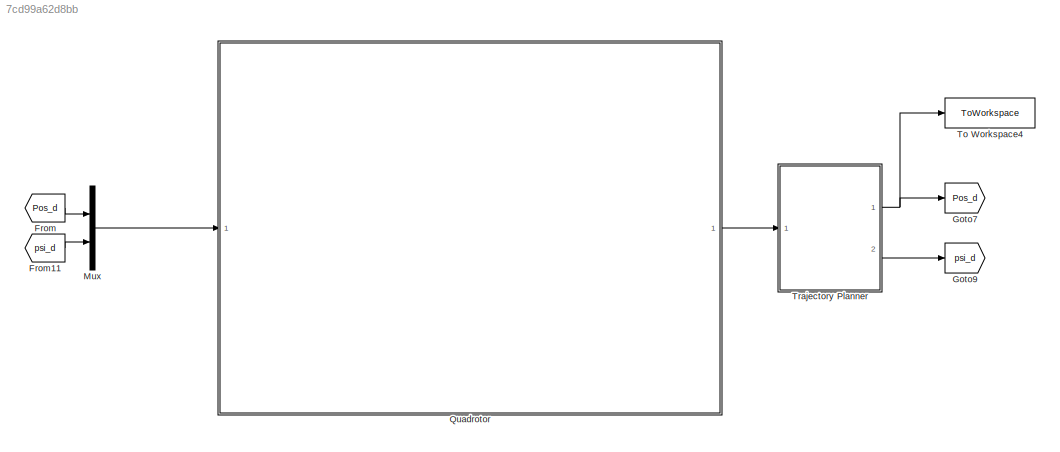
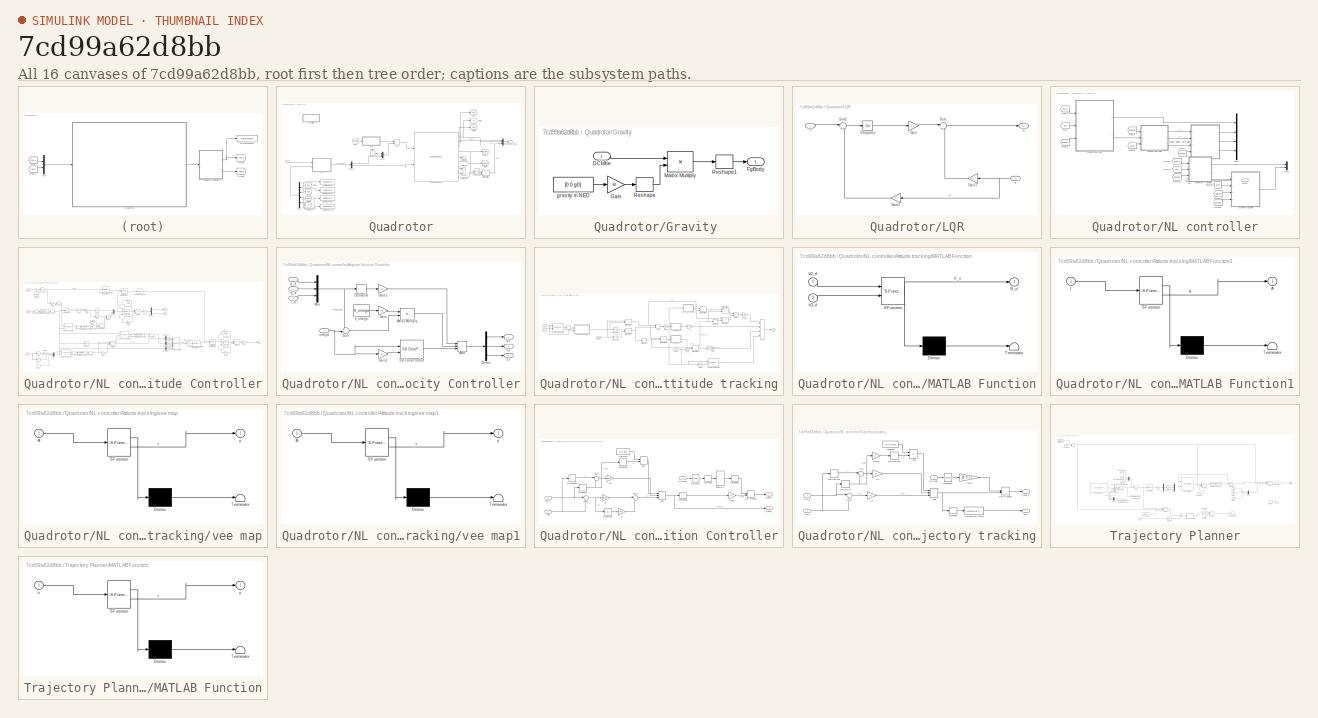
[diagram: thumbnail index - all 16 canvases of the model, root first then tree order]
MODEL slx_7cd99a62d8bb
KIND model
CONFIG AbsTol = auto
CONFIG EnableMultiTasking = off
CONFIG FixedStep = auto
CONFIG MaxStep = auto
CONFIG MinStep = auto
CONFIG RelTol = 1e-3
CONFIG SampleTimeConstraint = Unconstrained
CONFIG SolverName = VariableStepAuto
CONFIG StartTime = 0.0
CONFIG StopTime = 20
WORKSPACE source: external: MATLAB File  (data not in archive)
BLOCK [From] From
  GotoTag = Pos_d
BLOCK [From] From11
  GotoTag = psi_d
BLOCK [Goto] Goto7
  GotoTag = Pos_d
BLOCK [Goto] Goto9
  GotoTag = psi_d
BLOCK [Mux] Mux
  DisplayOption = bar
  Inputs = 2
  Ports = [2, 1]
BLOCK [SubSystem] Quadrotor
  Ports = [1, 1]
  RequestExecContextInheritance = off
BLOCK [Reference] Quadrotor/6DOF (Euler Angles)  REF=shared6dof/6DOF (Euler Angles)
  Ports = [2, 9]
  SourceBlock = shared6dof/6DOF (Euler Angles)
  SourceProductBaseCode = AE,PW,DR,MT,UV,VE
  SourceType = 6DOF EoM (Body Axis)
BLOCK [Sum] Quadrotor/Add
  IconShape = rectangular
  Inputs = +-
  Ports = [2, 1]
BLOCK [Demux] Quadrotor/Demux1
  Outputs = 2
  Ports = [1, 2]
BLOCK [From] Quadrotor/From
  GotoTag = DCMbe
BLOCK [From] Quadrotor/From1
  GotoTag = pos
  NameLocation = top
BLOCK [From] Quadrotor/From2
  GotoTag = euler
  NameLocation = top
BLOCK [From] Quadrotor/From8
  GotoTag = omega
  NameLocation = top
BLOCK [From] Quadrotor/From9
  GotoTag = Ve
  NameLocation = top
BLOCK [Goto] Quadrotor/Goto
  GotoTag = DCMbe
BLOCK [Goto] Quadrotor/Goto2
  GotoTag = Ve
BLOCK [Goto] Quadrotor/Goto4
  GotoTag = pos
BLOCK [Goto] Quadrotor/Goto5
  GotoTag = omega
BLOCK [Goto] Quadrotor/Goto6
  GotoTag = euler
BLOCK [SubSystem] Quadrotor/Gravity 
  Ports = [1, 1]
  RequestExecContextInheritance = off
BLOCK [Inport] Quadrotor/Gravity /DCMbe
BLOCK [Outport] Quadrotor/Gravity /FgBody
BLOCK [Gain] Quadrotor/Gravity /Gain
  Gain = M
BLOCK [Product] Quadrotor/Gravity /Matrix Multiply
  Multiplication = Matrix(*)
  Ports = [2, 1]
BLOCK [Reshape] Quadrotor/Gravity /Reshape
  OutputDimensionality = Column vector (2-D)
  Ports = [1, 1]
BLOCK [Reshape] Quadrotor/Gravity /Reshape1
  Ports = [1, 1]
BLOCK [Constant] Quadrotor/Gravity /gravity in NED
  Value = [0 0 g0]
BLOCK [SubSystem] Quadrotor/LQR
  Ports = [2, 1]
  RequestExecContextInheritance = off
BLOCK [Gain] Quadrotor/LQR/Gain
  Gain = Ki
  Multiplication = Matrix(K*u)
BLOCK [Gain] Quadrotor/LQR/Gain1
  Gain = K1
  Multiplication = Matrix(K*u)
  NameLocation = top
BLOCK [Gain] Quadrotor/LQR/Gain2
  Gain = C
  Multiplication = Matrix(K*u)
  NameLocation = top
BLOCK [Integrator] Quadrotor/LQR/Integrator
  Ports = [1, 1]
BLOCK [Sum] Quadrotor/LQR/Sum
  Inputs = |+-
  Ports = [2, 1]
BLOCK [Sum] Quadrotor/LQR/Sum1
  Inputs = |+-
  Ports = [2, 1]
BLOCK [Inport] Quadrotor/LQR/r
BLOCK [Outport] Quadrotor/LQR/u
BLOCK [Inport] Quadrotor/LQR/x
  NameLocation = top
  Port = 2
BLOCK [Product] Quadrotor/Matrix Multiply
  Multiplication = Matrix(*)
  Ports = [2, 1]
BLOCK [Mux] Quadrotor/Mux
  DisplayOption = bar
  Inputs = 3
  Ports = [3, 1]
BLOCK [Mux] Quadrotor/Mux1
  DisplayOption = bar
  Inputs = 3
  Ports = [3, 1]
BLOCK [Mux] Quadrotor/Mux2
  DisplayOption = bar
  NameLocation = top
  Ports = [4, 1]
BLOCK [SubSystem] Quadrotor/NL controller
  Commented = on
  Ports = [1, 1]
  RequestExecContextInheritance = off
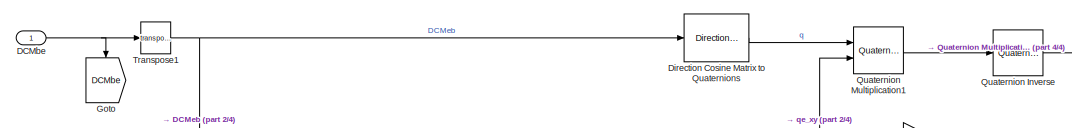
[diagram: Quadrotor/NL controller/Altitude Controller - part 1/4, top left region]
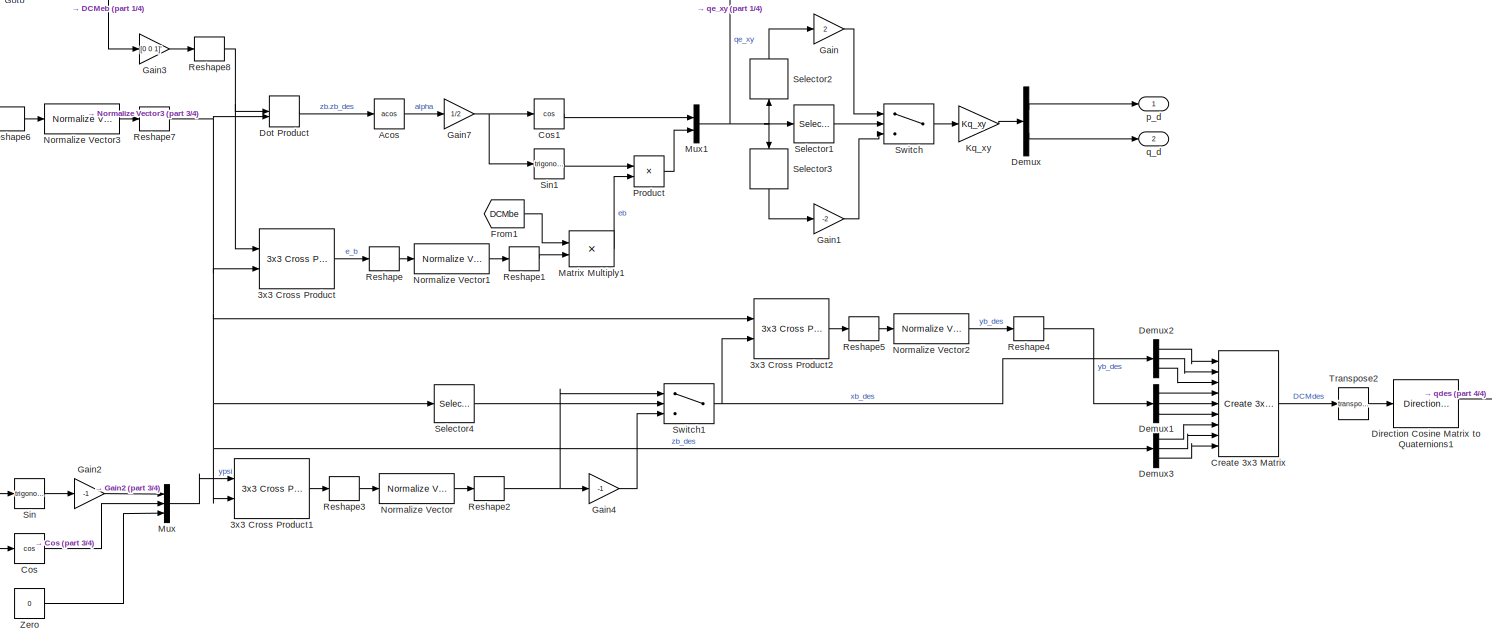
[diagram: Quadrotor/NL controller/Altitude Controller - part 2/4, center side, full height]
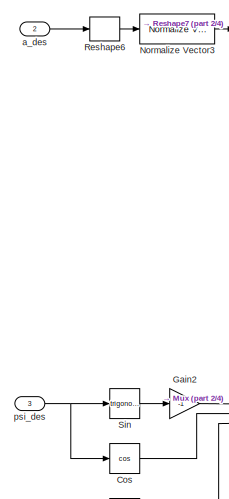
[diagram: Quadrotor/NL controller/Altitude Controller - part 3/4, middle left region]
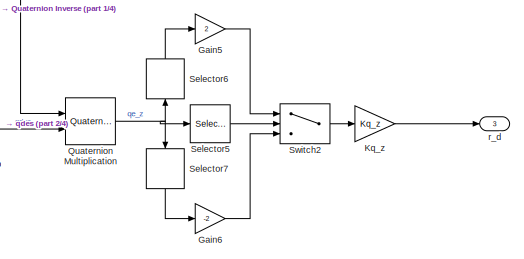
[diagram: Quadrotor/NL controller/Altitude Controller - part 4/4, bottom right region]
BLOCK [SubSystem] Quadrotor/NL controller/Altitude Controller
  Commented = on
  Ports = [3, 3]
  RequestExecContextInheritance = off
BLOCK [Reference] Quadrotor/NL controller/Altitude Controller/3x3 Cross Product  REF=sharedutil/3x3 Cross Product
  Ports = [2, 1]
  SourceBlock = sharedutil/3x3 Cross Product
  SourceProductBaseCode = AE,PW,DR,MT,UV,VE
  SourceType = CrossProduct
BLOCK [Reference] Quadrotor/NL controller/Altitude Controller/3x3 Cross Product1  REF=sharedutil/3x3 Cross Product
  Ports = [2, 1]
  SourceBlock = sharedutil/3x3 Cross Product
  SourceProductBaseCode = AE,PW,DR,MT,UV,VE
  SourceType = CrossProduct
BLOCK [Reference] Quadrotor/NL controller/Altitude Controller/3x3 Cross Product2  REF=sharedutil/3x3 Cross Product
  Ports = [2, 1]
  SourceBlock = sharedutil/3x3 Cross Product
  SourceProductBaseCode = AE,PW,DR,MT,UV,VE
  SourceType = CrossProduct
BLOCK [Trigonometry] Quadrotor/NL controller/Altitude Controller/Acos
  Operator = acos
  Ports = [1, 1]
BLOCK [Trigonometry] Quadrotor/NL controller/Altitude Controller/Cos
  Operator = cos
  Ports = [1, 1]
BLOCK [Trigonometry] Quadrotor/NL controller/Altitude Controller/Cos1
  Operator = cos
  Ports = [1, 1]
BLOCK [Reference] Quadrotor/NL controller/Altitude Controller/Create 3x3 Matrix  REF=sharedutil/Create 3x3 Matrix
  Ports = [9, 1]
  SourceBlock = sharedutil/Create 3x3 Matrix
  SourceProductBaseCode = AE,PW,DR,MT,UV,VE
  SourceType = Create 3x3 Matrix
BLOCK [Inport] Quadrotor/NL controller/Altitude Controller/DCMbe
BLOCK [Demux] Quadrotor/NL controller/Altitude Controller/Demux
  Outputs = 2
  Ports = [1, 2]
BLOCK [Demux] Quadrotor/NL controller/Altitude Controller/Demux1
  Outputs = 3
  Ports = [1, 3]
BLOCK [Demux] Quadrotor/NL controller/Altitude Controller/Demux2
  Outputs = 3
  Ports = [1, 3]
BLOCK [Demux] Quadrotor/NL controller/Altitude Controller/Demux3
  Outputs = 3
  Ports = [1, 3]
BLOCK [Reference] Quadrotor/NL controller/Altitude Controller/Direction Cosine Matrix to Quaternions  REF=sharedtransform/Direction Cosine Matrix 
to Quaternions
  Ports = [1, 1]
  SourceBlock = sharedtransform/Direction Cosine Matrix \nto Quaternions
  SourceProductBaseCode = AE,PW,DR,MT,UV,VE
  SourceType = DCM2Quaternion
BLOCK [Reference] Quadrotor/NL controller/Altitude Controller/Direction Cosine Matrix to Quaternions1  REF=sharedtransform/Direction Cosine Matrix 
to Quaternions
  Ports = [1, 1]
  SourceBlock = sharedtransform/Direction Cosine Matrix \nto Quaternions
  SourceProductBaseCode = AE,PW,DR,MT,UV,VE
  SourceType = DCM2Quaternion
BLOCK [DotProduct] Quadrotor/NL controller/Altitude Controller/Dot Product
  OutDataTypeStr = Inherit: Inherit via internal rule
BLOCK [From] Quadrotor/NL controller/Altitude Controller/From1
  GotoTag = DCMbe
BLOCK [Gain] Quadrotor/NL controller/Altitude Controller/Gain
  Gain = 2
BLOCK [Gain] Quadrotor/NL controller/Altitude Controller/Gain1
  Gain = -2
BLOCK [Gain] Quadrotor/NL controller/Altitude Controller/Gain2
  Gain = -1
BLOCK [Gain] Quadrotor/NL controller/Altitude Controller/Gain3
  Gain = [0 0 1]'
  Multiplication = Matrix(u*K)
BLOCK [Gain] Quadrotor/NL controller/Altitude Controller/Gain4
  Gain = -1
BLOCK [Gain] Quadrotor/NL controller/Altitude Controller/Gain5
  Gain = 2
BLOCK [Gain] Quadrotor/NL controller/Altitude Controller/Gain6
  Gain = -2
BLOCK [Gain] Quadrotor/NL controller/Altitude Controller/Gain7
  Gain = 1/2
BLOCK [Goto] Quadrotor/NL controller/Altitude Controller/Goto
  GotoTag = DCMbe
  NameLocation = left
BLOCK [Gain] Quadrotor/NL controller/Altitude Controller/Kq_xy
  Gain = Kq_xy
BLOCK [Gain] Quadrotor/NL controller/Altitude Controller/Kq_z
  Gain = Kq_z
BLOCK [Product] Quadrotor/NL controller/Altitude Controller/Matrix Multiply1
  Multiplication = Matrix(*)
  Ports = [2, 1]
BLOCK [Mux] Quadrotor/NL controller/Altitude Controller/Mux
  DisplayOption = bar
  Inputs = 3
  Ports = [3, 1]
BLOCK [Mux] Quadrotor/NL controller/Altitude Controller/Mux1
  DisplayOption = bar
  Inputs = 2
  Ports = [2, 1]
BLOCK [Reference] Quadrotor/NL controller/Altitude Controller/Normalize Vector  REF=vrlib/Utilities/Normalize Vector
  Ports = [1, 1]
  SourceBlock = vrlib/Utilities/Normalize Vector
  SourceProductBaseCode = SL
  SourceType = Normalize Vector
BLOCK [Reference] Quadrotor/NL controller/Altitude Controller/Normalize Vector1  REF=vrlib/Utilities/Normalize Vector
  Ports = [1, 1]
  SourceBlock = vrlib/Utilities/Normalize Vector
  SourceProductBaseCode = SL
  SourceType = Normalize Vector
BLOCK [Reference] Quadrotor/NL controller/Altitude Controller/Normalize Vector2  REF=vrlib/Utilities/Normalize Vector
  Ports = [1, 1]
  SourceBlock = vrlib/Utilities/Normalize Vector
  SourceProductBaseCode = SL
  SourceType = Normalize Vector
BLOCK [Reference] Quadrotor/NL controller/Altitude Controller/Normalize Vector3  REF=vrlib/Utilities/Normalize Vector
  Ports = [1, 1]
  SourceBlock = vrlib/Utilities/Normalize Vector
  SourceProductBaseCode = SL
  SourceType = Normalize Vector
BLOCK [Product] Quadrotor/NL controller/Altitude Controller/Product
  Ports = [2, 1]
BLOCK [Reference] Quadrotor/NL controller/Altitude Controller/Quaternion Inverse  REF=aerolibutil/Quaternion
Inverse
  Ports = [1, 1]
  SourceBlock = aerolibutil/Quaternion\nInverse
  SourceProductBaseCode = AE
  SourceType = Quaternion Inverse
BLOCK [Reference] Quadrotor/NL controller/Altitude Controller/Quaternion Multiplication  REF=aerolibutil/Quaternion
Multiplication
  Ports = [2, 1]
  SourceBlock = aerolibutil/Quaternion\nMultiplication
  SourceProductBaseCode = AE
  SourceType = Quaternion Multiplication
BLOCK [Reference] Quadrotor/NL controller/Altitude Controller/Quaternion Multiplication1  REF=aerolibutil/Quaternion
Multiplication
  Ports = [2, 1]
  SourceBlock = aerolibutil/Quaternion\nMultiplication
  SourceProductBaseCode = AE
  SourceType = Quaternion Multiplication
BLOCK [Reshape] Quadrotor/NL controller/Altitude Controller/Reshape
  OutputDimensionality = Column vector (2-D)
  Ports = [1, 1]
BLOCK [Reshape] Quadrotor/NL controller/Altitude Controller/Reshape1
  Ports = [1, 1]
BLOCK [Reshape] Quadrotor/NL controller/Altitude Controller/Reshape2
  Ports = [1, 1]
BLOCK [Reshape] Quadrotor/NL controller/Altitude Controller/Reshape3
  OutputDimensionality = Column vector (2-D)
  Ports = [1, 1]
BLOCK [Reshape] Quadrotor/NL controller/Altitude Controller/Reshape4
  Ports = [1, 1]
BLOCK [Reshape] Quadrotor/NL controller/Altitude Controller/Reshape5
  OutputDimensionality = Column vector (2-D)
  Ports = [1, 1]
BLOCK [Reshape] Quadrotor/NL controller/Altitude Controller/Reshape6
  OutputDimensionality = Column vector (2-D)
  Ports = [1, 1]
BLOCK [Reshape] Quadrotor/NL controller/Altitude Controller/Reshape7
  Ports = [1, 1]
BLOCK [Reshape] Quadrotor/NL controller/Altitude Controller/Reshape8
  Ports = [1, 1]
BLOCK [Selector] Quadrotor/NL controller/Altitude Controller/Selector1
  IndexOptions = Index vector (dialog)
  Indices = [1 ]
  InputPortWidth = 4
  OutputSizes = 1
  Ports = [1, 1]
BLOCK [Selector] Quadrotor/NL controller/Altitude Controller/Selector2
  IndexOptions = Index vector (dialog)
  Indices = [2 3]
  InputPortWidth = 4
  NameLocation = right
  OutputSizes = 1
  Ports = [1, 1]
BLOCK [Selector] Quadrotor/NL controller/Altitude Controller/Selector3
  IndexOptions = Index vector (dialog)
  Indices = [2 3]
  InputPortWidth = 4
  NameLocation = left
  OutputSizes = 1
  Ports = [1, 1]
BLOCK [Selector] Quadrotor/NL controller/Altitude Controller/Selector4
  IndexOptions = Index vector (dialog)
  Indices = [3]
  InputPortWidth = 3
  OutputSizes = 1
  Ports = [1, 1]
BLOCK [Selector] Quadrotor/NL controller/Altitude Controller/Selector5
  IndexOptions = Index vector (dialog)
  Indices = [1 ]
  InputPortWidth = 4
  OutputSizes = 1
  Ports = [1, 1]
BLOCK [Selector] Quadrotor/NL controller/Altitude Controller/Selector6
  IndexOptions = Index vector (dialog)
  Indices = [4]
  InputPortWidth = 4
  NameLocation = right
  OutputSizes = 1
  Ports = [1, 1]
BLOCK [Selector] Quadrotor/NL controller/Altitude Controller/Selector7
  IndexOptions = Index vector (dialog)
  Indices = [4]
  InputPortWidth = 4
  NameLocation = left
  OutputSizes = 1
  Ports = [1, 1]
BLOCK [Trigonometry] Quadrotor/NL controller/Altitude Controller/Sin
  Ports = [1, 1]
BLOCK [Trigonometry] Quadrotor/NL controller/Altitude Controller/Sin1
  Ports = [1, 1]
BLOCK [Switch] Quadrotor/NL controller/Altitude Controller/Switch
  InputSameDT = off
  SaturateOnIntegerOverflow = off
BLOCK [Switch] Quadrotor/NL controller/Altitude Controller/Switch1
  InputSameDT = off
  SaturateOnIntegerOverflow = off
BLOCK [Switch] Quadrotor/NL controller/Altitude Controller/Switch2
  InputSameDT = off
  SaturateOnIntegerOverflow = off
BLOCK [Math] Quadrotor/NL controller/Altitude Controller/Transpose1
  Operator = transpose
  Ports = [1, 1]
BLOCK [Math] Quadrotor/NL controller/Altitude Controller/Transpose2
  Operator = transpose
  Ports = [1, 1]
BLOCK [Constant] Quadrotor/NL controller/Altitude Controller/Zero
  OutDataTypeStr = Inherit: Inherit via back propagation
  Value = 0
BLOCK [Inport] Quadrotor/NL controller/Altitude Controller/a_des
  Port = 2
BLOCK [Outport] Quadrotor/NL controller/Altitude Controller/p_d
BLOCK [Inport] Quadrotor/NL controller/Altitude Controller/psi_des
  Port = 3
BLOCK [Outport] Quadrotor/NL controller/Altitude Controller/q_d
  Port = 2
BLOCK [Outport] Quadrotor/NL controller/Altitude Controller/r_d
  Port = 3
BLOCK [SubSystem] Quadrotor/NL controller/Angular Velocity Controller
  Commented = on
  Ports = [4, 3]
  RequestExecContextInheritance = off
BLOCK [Reference] Quadrotor/NL controller/Angular Velocity Controller/3x3 Cross Product  REF=sharedutil/3x3 Cross Product
  Ports = [2, 1]
  SourceBlock = sharedutil/3x3 Cross Product
  SourceProductBaseCode = AE,PW,DR,MT,UV,VE
  SourceType = CrossProduct
BLOCK [Sum] Quadrotor/NL controller/Angular Velocity Controller/Add
  IconShape = rectangular
  Inputs = +++
  Ports = [3, 1]
BLOCK [Demux] Quadrotor/NL controller/Angular Velocity Controller/Demux
  Outputs = 3
  Ports = [1, 3]
BLOCK [Derivative] Quadrotor/NL controller/Angular Velocity Controller/Derivative
BLOCK [Gain] Quadrotor/NL controller/Angular Velocity Controller/Gain
  Gain = Ib
  Multiplication = Matrix(K*u)
BLOCK [Gain] Quadrotor/NL controller/Angular Velocity Controller/Gain1
  Gain = Ib
  Multiplication = Matrix(K*u)
BLOCK [Gain] Quadrotor/NL controller/Angular Velocity Controller/Gain2
  Gain = Ib
  Multiplication = Matrix(K*u)
BLOCK [Product] Quadrotor/NL controller/Angular Velocity Controller/Matrix Multiply
  Multiplication = Matrix(*)
  Ports = [2, 1]
BLOCK [Mux] Quadrotor/NL controller/Angular Velocity Controller/Mux
  DisplayOption = bar
  Inputs = 3
  Ports = [3, 1]
BLOCK [Sum] Quadrotor/NL controller/Angular Velocity Controller/Sum
  Inputs = +-|
  Ports = [2, 1]
BLOCK [Constant] Quadrotor/NL controller/Angular Velocity Controller/k_omega
  Value = K_omega
BLOCK [Inport] Quadrotor/NL controller/Angular Velocity Controller/omega
  Port = 4
BLOCK [Inport] Quadrotor/NL controller/Angular Velocity Controller/p_d
BLOCK [Inport] Quadrotor/NL controller/Angular Velocity Controller/q_d
  Port = 2
BLOCK [Inport] Quadrotor/NL controller/Angular Velocity Controller/r_d
  Port = 3
BLOCK [Outport] Quadrotor/NL controller/Angular Velocity Controller/u1
BLOCK [Outport] Quadrotor/NL controller/Angular Velocity Controller/u2
  Port = 2
BLOCK [Outport] Quadrotor/NL controller/Angular Velocity Controller/u3
  Port = 3
BLOCK [SubSystem] Quadrotor/NL controller/Attitude tracking
  Commented = on
  Ports = [4, 1]
  RequestExecContextInheritance = off
BLOCK [Reference] Quadrotor/NL controller/Attitude tracking/3x3 Cross Product1  REF=sharedutil/3x3 Cross Product
  Ports = [2, 1]
  SourceBlock = sharedutil/3x3 Cross Product
  SourceProductBaseCode = AE,PW,DR,MT,UV,VE
  SourceType = CrossProduct
BLOCK [Reference] Quadrotor/NL controller/Attitude tracking/3x3 Cross Product2  REF=sharedutil/3x3 Cross Product
  Ports = [2, 1]
  SourceBlock = sharedutil/3x3 Cross Product
  SourceProductBaseCode = AE,PW,DR,MT,UV,VE
  SourceType = CrossProduct
BLOCK [Sum] Quadrotor/NL controller/Attitude tracking/Add1
  IconShape = rectangular
  Inputs = -+
  Ports = [2, 1]
BLOCK [Sum] Quadrotor/NL controller/Attitude tracking/Add2
  IconShape = rectangular
  Inputs = +-
  Ports = [2, 1]
BLOCK [Sum] Quadrotor/NL controller/Attitude tracking/Add3
  IconShape = rectangular
  Inputs = ++++
  Ports = [4, 1]
BLOCK [Inport] Quadrotor/NL controller/Attitude tracking/DCMbe
  Port = 3
BLOCK [Derivative] Quadrotor/NL controller/Attitude tracking/Derivative1
BLOCK [Derivative] Quadrotor/NL controller/Attitude tracking/Derivative2
BLOCK [Gain] Quadrotor/NL controller/Attitude tracking/Gain3
  Gain = 1/2
BLOCK [Gain] Quadrotor/NL controller/Attitude tracking/Gain4
  Gain = -k_omega
  Multiplication = Matrix(K*u)
BLOCK [Gain] Quadrotor/NL controller/Attitude tracking/Gain5
  Gain = Ib
  Multiplication = Matrix(K*u)
BLOCK [Gain] Quadrotor/NL controller/Attitude tracking/Gain6
  Gain = -Ib
  Multiplication = Matrix(K*u)
BLOCK [Gain] Quadrotor/NL controller/Attitude tracking/Kr
  Gain = -kr
  Multiplication = Matrix(K*u)
BLOCK [Outport] Quadrotor/NL controller/Attitude tracking/M
BLOCK [SubSystem] Quadrotor/NL controller/Attitude tracking/MATLAB Function
  ErrorFcn = Stateflow.Translate.translate
  PermitHierarchicalResolution = ExplicitOnly
  Ports = [2, 1]
  RequestExecContextInheritance = off
  SFBlockType = MATLAB Function
  TreatAsAtomicUnit = on
BLOCK [Demux] Quadrotor/NL controller/Attitude tracking/MATLAB Function/ Demux 
  Outputs = 1
  Ports = [1, 1]
BLOCK [S-Function] Quadrotor/NL controller/Attitude tracking/MATLAB Function/ SFunction 
  EnableBusSupport = on
  FunctionName = sf_sfun
  PortCounts = [2 2]
  Ports = [2, 2]
  SFcnIsStateOwnerBlock = off
  SFunctionDeploymentMode = off
  Tag = Stateflow S-Function 2
BLOCK [Terminator] Quadrotor/NL controller/Attitude tracking/MATLAB Function/ Terminator 
BLOCK [Outport] Quadrotor/NL controller/Attitude tracking/MATLAB Function/R_d
BLOCK [Inport] Quadrotor/NL controller/Attitude tracking/MATLAB Function/b2_d
BLOCK [Inport] Quadrotor/NL controller/Attitude tracking/MATLAB Function/b3_d
  Port = 2
BLOCK [SubSystem] Quadrotor/NL controller/Attitude tracking/MATLAB Function1
  ErrorFcn = Stateflow.Translate.translate
  PermitHierarchicalResolution = ExplicitOnly
  Ports = [1, 1]
  RequestExecContextInheritance = off
  SFBlockType = MATLAB Function
  TreatAsAtomicUnit = on
BLOCK [Demux] Quadrotor/NL controller/Attitude tracking/MATLAB Function1/ Demux 
  Outputs = 1
  Ports = [1, 1]
BLOCK [S-Function] Quadrotor/NL controller/Attitude tracking/MATLAB Function1/ SFunction 
  EnableBusSupport = on
  FunctionName = sf_sfun
  PortCounts = [1 2]
  Ports = [1, 2]
  SFcnIsStateOwnerBlock = off
  SFunctionDeploymentMode = off
  Tag = Stateflow S-Function 4
BLOCK [Terminator] Quadrotor/NL controller/Attitude tracking/MATLAB Function1/ Terminator 
BLOCK [Outport] Quadrotor/NL controller/Attitude tracking/MATLAB Function1/A
BLOCK [Inport] Quadrotor/NL controller/Attitude tracking/MATLAB Function1/t
BLOCK [Product] Quadrotor/NL controller/Attitude tracking/Matrix Multiply1
  Multiplication = Matrix(*)
  Ports = [2, 1]
BLOCK [Product] Quadrotor/NL controller/Attitude tracking/Matrix Multiply2
  Multiplication = Matrix(*)
  Ports = [2, 1]
BLOCK [Product] Quadrotor/NL controller/Attitude tracking/Matrix Multiply3
  Multiplication = Matrix(*)
  Ports = [2, 1]
BLOCK [Product] Quadrotor/NL controller/Attitude tracking/Matrix Multiply4
  Multiplication = Matrix(*)
  Ports = [2, 1]
BLOCK [Product] Quadrotor/NL controller/Attitude tracking/Matrix Multiply5
  Multiplication = Matrix(*)
  Ports = [2, 1]
BLOCK [Product] Quadrotor/NL controller/Attitude tracking/Matrix Multiply6
  Multiplication = Matrix(*)
  Ports = [2, 1]
BLOCK [Product] Quadrotor/NL controller/Attitude tracking/Matrix Multiply7
  Multiplication = Matrix(*)
  Ports = [2, 1]
BLOCK [Reshape] Quadrotor/NL controller/Attitude tracking/Reshape
  OutputDimensionality = Column vector (2-D)
  Ports = [1, 1]
BLOCK [Sum] Quadrotor/NL controller/Attitude tracking/Sum1
  Inputs = -+|
  Ports = [2, 1]
BLOCK [Math] Quadrotor/NL controller/Attitude tracking/Transpose
  Operator = transpose
  Ports = [1, 1]
BLOCK [Math] Quadrotor/NL controller/Attitude tracking/Transpose1
  Operator = transpose
  Ports = [1, 1]
BLOCK [Inport] Quadrotor/NL controller/Attitude tracking/b1_d
  Port = 2
BLOCK [Inport] Quadrotor/NL controller/Attitude tracking/b3_d
BLOCK [Inport] Quadrotor/NL controller/Attitude tracking/omega
  Port = 4
BLOCK [SubSystem] Quadrotor/NL controller/Attitude tracking/vee map
  ErrorFcn = Stateflow.Translate.translate
  PermitHierarchicalResolution = ExplicitOnly
  Ports = [1, 1]
  RequestExecContextInheritance = off
  SFBlockType = MATLAB Function
  TreatAsAtomicUnit = on
BLOCK [Demux] Quadrotor/NL controller/Attitude tracking/vee map/ Demux 
  Outputs = 1
  Ports = [1, 1]
BLOCK [S-Function] Quadrotor/NL controller/Attitude tracking/vee map/ SFunction 
  EnableBusSupport = on
  FunctionName = sf_sfun
  PortCounts = [1 2]
  Ports = [1, 2]
  SFcnIsStateOwnerBlock = off
  SFunctionDeploymentMode = off
  Tag = Stateflow S-Function 1
BLOCK [Terminator] Quadrotor/NL controller/Attitude tracking/vee map/ Terminator 
BLOCK [Inport] Quadrotor/NL controller/Attitude tracking/vee map/A
BLOCK [Outport] Quadrotor/NL controller/Attitude tracking/vee map/y
BLOCK [SubSystem] Quadrotor/NL controller/Attitude tracking/vee map1
  ErrorFcn = Stateflow.Translate.translate
  PermitHierarchicalResolution = ExplicitOnly
  Ports = [1, 1]
  RequestExecContextInheritance = off
  SFBlockType = MATLAB Function
  TreatAsAtomicUnit = on
BLOCK [Demux] Quadrotor/NL controller/Attitude tracking/vee map1/ Demux 
  Outputs = 1
  Ports = [1, 1]
BLOCK [S-Function] Quadrotor/NL controller/Attitude tracking/vee map1/ SFunction 
  EnableBusSupport = on
  FunctionName = sf_sfun
  PortCounts = [1 2]
  Ports = [1, 2]
  SFcnIsStateOwnerBlock = off
  SFunctionDeploymentMode = off
  Tag = Stateflow S-Function 3
BLOCK [Terminator] Quadrotor/NL controller/Attitude tracking/vee map1/ Terminator 
BLOCK [Inport] Quadrotor/NL controller/Attitude tracking/vee map1/A
BLOCK [Outport] Quadrotor/NL controller/Attitude tracking/vee map1/y
BLOCK [Constant] Quadrotor/NL controller/Constant
  Commented = on
  Value = [1 0 0]'
BLOCK [From] Quadrotor/NL controller/From
  Commented = on
  GotoTag = pos
BLOCK [From] Quadrotor/NL controller/From12
  Commented = on
  GotoTag = DCMbe
BLOCK [From] Quadrotor/NL controller/From13
  Commented = on
  GotoTag = omega
BLOCK [From] Quadrotor/NL controller/From14
  Commented = on
  GotoTag = pos
BLOCK [From] Quadrotor/NL controller/From15
  Commented = on
  GotoTag = DCMbe
BLOCK [From] Quadrotor/NL controller/From16
  Commented = on
  GotoTag = Pos_d
BLOCK [From] Quadrotor/NL controller/From3
  Commented = on
  GotoTag = DCMbe
BLOCK [From] Quadrotor/NL controller/From4
  Commented = on
  GotoTag = DCMbe
BLOCK [From] Quadrotor/NL controller/From5
  Commented = on
  GotoTag = Pos_d
BLOCK [From] Quadrotor/NL controller/From6
  Commented = on
  GotoTag = psi_d
BLOCK [From] Quadrotor/NL controller/From7
  Commented = on
  GotoTag = omega
BLOCK [Inport] Quadrotor/NL controller/In1
BLOCK [Mux] Quadrotor/NL controller/Mux1
  Commented = on
  DisplayOption = bar
  Ports = [4, 1]
BLOCK [Mux] Quadrotor/NL controller/Mux3
  Commented = on
  DisplayOption = bar
  Inputs = 2
  Ports = [2, 1]
BLOCK [Outport] Quadrotor/NL controller/Out1
BLOCK [SubSystem] Quadrotor/NL controller/Position Controller
  Commented = on
  Ports = [3, 2]
  RequestExecContextInheritance = off
BLOCK [Sum] Quadrotor/NL controller/Position Controller/Add1
  IconShape = rectangular
  Ports = [2, 1]
BLOCK [Sum] Quadrotor/NL controller/Position Controller/Add2
  IconShape = rectangular
  Inputs = +++
  Ports = [3, 1]
BLOCK [Constant] Quadrotor/NL controller/Position Controller/Constant
  Value = [0 0 g0]
BLOCK [Inport] Quadrotor/NL controller/Position Controller/DCMbe
  Port = 3
BLOCK [Derivative] Quadrotor/NL controller/Position Controller/Derivative
BLOCK [Derivative] Quadrotor/NL controller/Position Controller/Derivative1
BLOCK [Derivative] Quadrotor/NL controller/Position Controller/Derivative2
BLOCK [DotProduct] Quadrotor/NL controller/Position Controller/Dot Product
  OutDataTypeStr = Inherit: Inherit via internal rule
BLOCK [Outport] Quadrotor/NL controller/Position Controller/F_des_b
BLOCK [Gain] Quadrotor/NL controller/Position Controller/Gain2
  Gain = M
BLOCK [Integrator] Quadrotor/NL controller/Position Controller/Integrator
  Ports = [1, 1]
BLOCK [Gain] Quadrotor/NL controller/Position Controller/Kd
  Gain = diag([Kd_x  Kd_y Kd_z])
  Multiplication = Matrix(K*u)
BLOCK [Gain] Quadrotor/NL controller/Position Controller/Ki
  Gain = diag([Ki_x  Ki_y Ki_z])
  Multiplication = Matrix(K*u)
BLOCK [Gain] Quadrotor/NL controller/Position Controller/Kp
  Gain = diag([Kp_x  Kp_y Kp_z])
  Multiplication = Matrix(K*u)
BLOCK [Inport] Quadrotor/NL controller/Position Controller/Pos
  Port = 2
BLOCK [Inport] Quadrotor/NL controller/Position Controller/Pos_d
BLOCK [Reshape] Quadrotor/NL controller/Position Controller/Reshape
  OutputDimensionality = Column vector (2-D)
  Ports = [1, 1]
BLOCK [Reshape] Quadrotor/NL controller/Position Controller/Reshape2
  OutputDimensionality = Column vector (2-D)
  Ports = [1, 1]
BLOCK [Reshape] Quadrotor/NL controller/Position Controller/Reshape3
  Ports = [1, 1]
BLOCK [Selector] Quadrotor/NL controller/Position Controller/Selector1
  IndexOptions = Index vector (dialog)
  Indices = [7 8 9]
  InputPortWidth = 9
  OutputSizes = 1
  Ports = [1, 1]
BLOCK [Sum] Quadrotor/NL controller/Position Controller/Sum
  Inputs = |-+
  Ports = [2, 1]
BLOCK [Sum] Quadrotor/NL controller/Position Controller/Sum1
  Inputs = |+-
  Ports = [2, 1]
BLOCK [Sum] Quadrotor/NL controller/Position Controller/Sum2
  Inputs = |++
  Ports = [2, 1]
BLOCK [Math] Quadrotor/NL controller/Position Controller/Transpose
  Operator = transpose
  Ports = [1, 1]
BLOCK [Outport] Quadrotor/NL controller/Position Controller/a_des_i
  Port = 2
BLOCK [SubSystem] Quadrotor/NL controller/Trajectory tracking
  Commented = on
  Ports = [3, 2]
  RequestExecContextInheritance = off
BLOCK [Sum] Quadrotor/NL controller/Trajectory tracking/Add1
  IconShape = rectangular
  Inputs = +-
  Ports = [2, 1]
BLOCK [Sum] Quadrotor/NL controller/Trajectory tracking/Add2
  IconShape = rectangular
  Inputs = +++
  Ports = [3, 1]
BLOCK [Constant] Quadrotor/NL controller/Trajectory tracking/Constant
  Value = [0 0 M*g0]
BLOCK [Inport] Quadrotor/NL controller/Trajectory tracking/DCMbe
  Port = 3
BLOCK [Derivative] Quadrotor/NL controller/Trajectory tracking/Derivative
BLOCK [Derivative] Quadrotor/NL controller/Trajectory tracking/Derivative1
BLOCK [Derivative] Quadrotor/NL controller/Trajectory tracking/Derivative2
BLOCK [DotProduct] Quadrotor/NL controller/Trajectory tracking/Dot Product
  OutDataTypeStr = Inherit: Inherit via internal rule
BLOCK [Outport] Quadrotor/NL controller/Trajectory tracking/F_des_b
BLOCK [Gain] Quadrotor/NL controller/Trajectory tracking/Gain
  Gain = [0 0 1]'
  Multiplication = Matrix(u*K)
BLOCK [Gain] Quadrotor/NL controller/Trajectory tracking/Gain1
  Gain = M
BLOCK [Gain] Quadrotor/NL controller/Trajectory tracking/Kd
  Gain = kv
  Multiplication = Matrix(K*u)
BLOCK [Gain] Quadrotor/NL controller/Trajectory tracking/Kp
  Gain = kx
  Multiplication = Matrix(K*u)
BLOCK [Reference] Quadrotor/NL controller/Trajectory tracking/Normalize Vector  REF=vrlib/Utilities/Normalize Vector
  Ports = [1, 1]
  SourceBlock = vrlib/Utilities/Normalize Vector
  SourceProductBaseCode = SL
  SourceType = Normalize Vector
BLOCK [Inport] Quadrotor/NL controller/Trajectory tracking/Pos
  Port = 2
BLOCK [Inport] Quadrotor/NL controller/Trajectory tracking/Pos_d
BLOCK [Reshape] Quadrotor/NL controller/Trajectory tracking/Reshape
  OutputDimensionality = Column vector (2-D)
  Ports = [1, 1]
BLOCK [Sum] Quadrotor/NL controller/Trajectory tracking/Sum
  Inputs = |+-
  Ports = [2, 1]
BLOCK [Sum] Quadrotor/NL controller/Trajectory tracking/Sum1
  Inputs = |-+
  Ports = [2, 1]
BLOCK [Math] Quadrotor/NL controller/Trajectory tracking/Transpose
  Operator = transpose
  Ports = [1, 1]
BLOCK [Outport] Quadrotor/NL controller/Trajectory tracking/b3_d
  Port = 2
BLOCK [Terminator] Quadrotor/Terminator
BLOCK [Terminator] Quadrotor/Terminator1
BLOCK [Terminator] Quadrotor/Terminator2
BLOCK [ToWorkspace] Quadrotor/To Workspace
  FixptAsFi = on
  MaxDataPoints = inf
  Ports = [1]
  SampleTime = -1
  SaveFormat = Timeseries
  VariableName = pos
BLOCK [ToWorkspace] Quadrotor/To Workspace1
  FixptAsFi = on
  MaxDataPoints = inf
  Ports = [1]
  SampleTime = -1
  SaveFormat = Timeseries
  VariableName = euler
BLOCK [ToWorkspace] Quadrotor/To Workspace2
  FixptAsFi = on
  MaxDataPoints = inf
  Ports = [1]
  SampleTime = -1
  SaveFormat = Timeseries
  VariableName = omega
BLOCK [ToWorkspace] Quadrotor/To Workspace3
  FixptAsFi = on
  MaxDataPoints = inf
  Ports = [1]
  SampleTime = -1
  SaveFormat = Timeseries
  VariableName = V
BLOCK [Math] Quadrotor/Transpose
  Operator = transpose
  Ports = [1, 1]
BLOCK [Constant] Quadrotor/Zero
  OutDataTypeStr = Inherit: Inherit via back propagation
  Value = 0
BLOCK [Outport] Quadrotor/[x v a]_drone_ENU
BLOCK [Inport] Quadrotor/r
BLOCK [ToWorkspace] To Workspace4
  FixptAsFi = on
  MaxDataPoints = inf
  Ports = [1]
  SampleTime = -1
  SaveFormat = Timeseries
  VariableName = pos_des
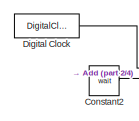
[diagram: Trajectory Planner - part 1/4, top left region]
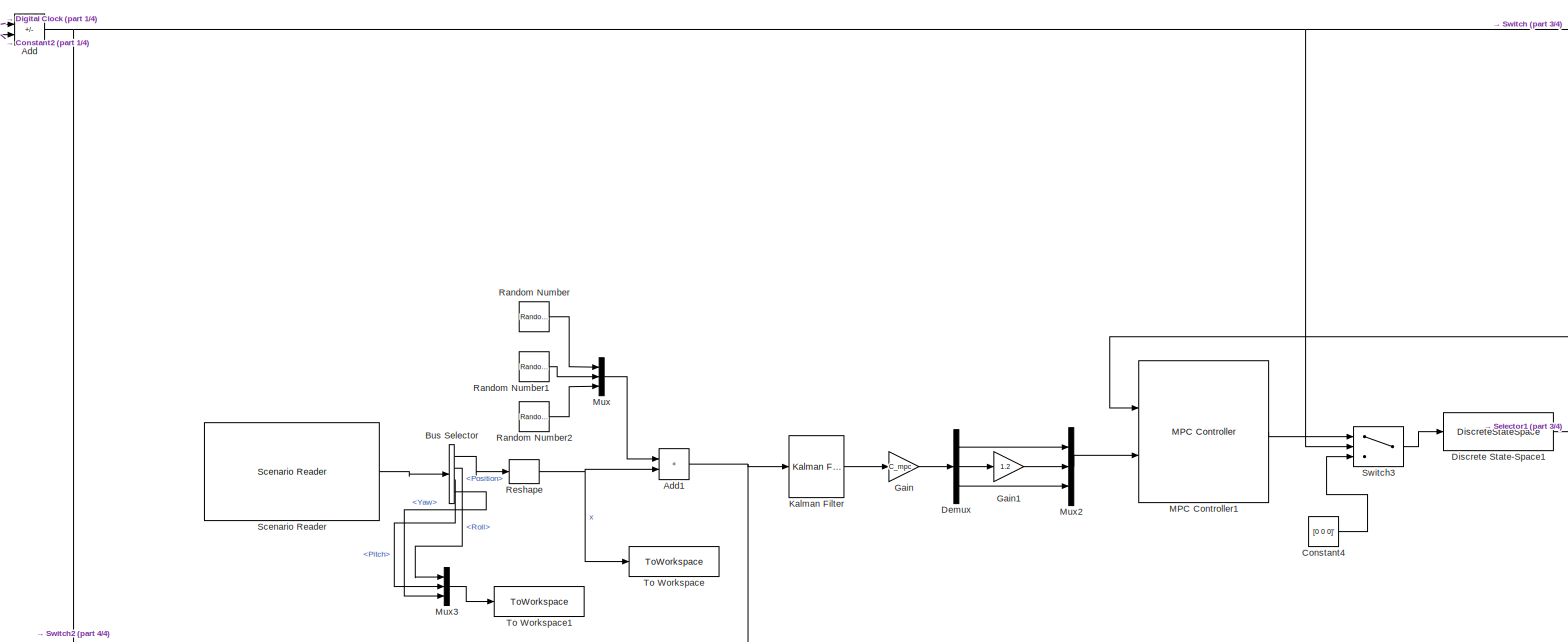
[diagram: Trajectory Planner - part 2/4, central region]
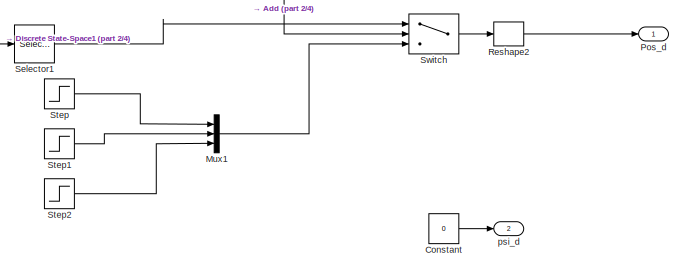
[diagram: Trajectory Planner - part 3/4, middle right region]
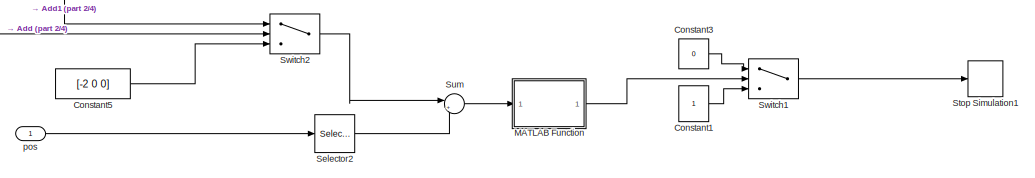
[diagram: Trajectory Planner - part 4/4, bottom center region]
BLOCK [SubSystem] Trajectory Planner
  Ports = [1, 2]
  RequestExecContextInheritance = off
BLOCK [Sum] Trajectory Planner/Add
  IconShape = rectangular
  Inputs = +-
  Ports = [2, 1]
BLOCK [Sum] Trajectory Planner/Add1
  IconShape = rectangular
  Ports = [2, 1]
BLOCK [BusSelector] Trajectory Planner/Bus Selector
  OutputSignals = Actors.Position,Actors.Roll,Actors.Pitch,Actors.Yaw
  Ports = [1, 4]
BLOCK [Constant] Trajectory Planner/Constant
  Value = 0
BLOCK [Constant] Trajectory Planner/Constant1
BLOCK [Constant] Trajectory Planner/Constant2
  Value = wait
BLOCK [Constant] Trajectory Planner/Constant3
  Value = 0
BLOCK [Constant] Trajectory Planner/Constant4
  Value = [0 0 0]'
BLOCK [Constant] Trajectory Planner/Constant5
  Value = [-2 0 0]
BLOCK [Demux] Trajectory Planner/Demux
  Outputs = 3
  Ports = [1, 3]
BLOCK [DigitalClock] Trajectory Planner/Digital Clock
  SampleTime = 0.01
BLOCK [DiscreteStateSpace] Trajectory Planner/Discrete State-Space1
  A = A_mpc
  B = B_mpc
  C = C_mpc
  D = D_mpc
  InitialCondition = [0;0;0; 0;0;0  ; 5 ;0;0]
  SampleTime = 0.01
BLOCK [Gain] Trajectory Planner/Gain
  Gain = C_mpc
  Multiplication = Matrix(K*u)
BLOCK [Gain] Trajectory Planner/Gain1
  Gain = 1.2
BLOCK [Reference] Trajectory Planner/Kalman Filter  REF=ctrlSharedLib/Kalman Filter
  Ports = [1, 1]
  SourceBlock = ctrlSharedLib/Kalman Filter
  SourceProductBaseCode = CT,ID
  SourceType = ctrlKalmanFilter
BLOCK [SubSystem] Trajectory Planner/MATLAB Function
  ErrorFcn = Stateflow.Translate.translate
  PermitHierarchicalResolution = ExplicitOnly
  Ports = [1, 1]
  RequestExecContextInheritance = off
  SFBlockType = MATLAB Function
  TreatAsAtomicUnit = on
BLOCK [Demux] Trajectory Planner/MATLAB Function/ Demux 
  Outputs = 1
  Ports = [1, 1]
BLOCK [S-Function] Trajectory Planner/MATLAB Function/ SFunction 
  EnableBusSupport = on
  FunctionName = sf_sfun
  PortCounts = [1 2]
  Ports = [1, 2]
  SFcnIsStateOwnerBlock = off
  SFunctionDeploymentMode = off
  Tag = Stateflow S-Function 5
BLOCK [Terminator] Trajectory Planner/MATLAB Function/ Terminator 
BLOCK [Inport] Trajectory Planner/MATLAB Function/u
BLOCK [Outport] Trajectory Planner/MATLAB Function/y
BLOCK [Reference] Trajectory Planner/MPC Controller1  REF=mpclib/MPC Controller  (lib defined in mdl_ae329e0e0455)
  Ports = [2, 1]
  SCDEnableBlockLinearizationSpecification = on
  SourceBlock = mpclib/MPC Controller
  SourceProductBaseCode = MP
  SourceType = MPC
BLOCK [Mux] Trajectory Planner/Mux
  DisplayOption = bar
  Inputs = 3
  Ports = [3, 1]
BLOCK [Mux] Trajectory Planner/Mux1
  DisplayOption = bar
  Inputs = 3
  Ports = [3, 1]
BLOCK [Mux] Trajectory Planner/Mux2
  DisplayOption = bar
  Inputs = 3
  Ports = [3, 1]
BLOCK [Mux] Trajectory Planner/Mux3
  DisplayOption = bar
  Inputs = 3
  Ports = [3, 1]
BLOCK [Outport] Trajectory Planner/Pos_d
BLOCK [RandomNumber] Trajectory Planner/Random Number
  SampleTime = 0.01
  Variance = 0.01
  VectorParams1D = off
BLOCK [RandomNumber] Trajectory Planner/Random Number1
  SampleTime = 0.01
  Variance = 0.01
  VectorParams1D = off
BLOCK [RandomNumber] Trajectory Planner/Random Number2
  SampleTime = 0.01
  Variance = 0.01
  VectorParams1D = off
BLOCK [Reshape] Trajectory Planner/Reshape
  Ports = [1, 1]
BLOCK [Reshape] Trajectory Planner/Reshape2
  Ports = [1, 1]
BLOCK [Reference] Trajectory Planner/Scenario Reader  REF=drivingscenarioandsensors/Scenario Reader
  Ports = [0, 1]
  SourceBlock = drivingscenarioandsensors/Scenario Reader
  SourceProductBaseCode = DR
  SourceType = driving.scenario.internal.ScenarioReader
BLOCK [Selector] Trajectory Planner/Selector1
  IndexOptions = Index vector (dialog)
  Indices = [1 2 3]
  InputPortWidth = 9
  OutputSizes = 1
  Ports = [1, 1]
BLOCK [Selector] Trajectory Planner/Selector2
  IndexOptions = Index vector (dialog)
  Indices = [1 2 3]
  InputPortWidth = 9
  OutputSizes = 1
  Ports = [1, 1]
BLOCK [Step] Trajectory Planner/Step
  After = 0
  SampleTime = 0
  Time = 0
BLOCK [Step] Trajectory Planner/Step1
  After = 0
  SampleTime = 0
  Time = 0
BLOCK [Step] Trajectory Planner/Step2
  After = 5
  SampleTime = 0
  Time = 0
BLOCK [Stop] Trajectory Planner/Stop Simulation1
BLOCK [Sum] Trajectory Planner/Sum
  Inputs = |+-
  Ports = [2, 1]
BLOCK [Switch] Trajectory Planner/Switch
  InputSameDT = off
  SaturateOnIntegerOverflow = off
BLOCK [Switch] Trajectory Planner/Switch1
  Criteria = u2 > Threshold
  InputSameDT = off
  SaturateOnIntegerOverflow = off
  Threshold = 0.7
BLOCK [Switch] Trajectory Planner/Switch2
  InputSameDT = off
  SaturateOnIntegerOverflow = off
BLOCK [Switch] Trajectory Planner/Switch3
  InputSameDT = off
  SaturateOnIntegerOverflow = off
BLOCK [ToWorkspace] Trajectory Planner/To Workspace
  FixptAsFi = on
  MaxDataPoints = inf
  Ports = [1]
  SampleTime = -1
  SaveFormat = Timeseries
  VariableName = pos_GV
BLOCK [ToWorkspace] Trajectory Planner/To Workspace1
  FixptAsFi = on
  MaxDataPoints = inf
  Ports = [1]
  SampleTime = -1
  SaveFormat = Timeseries
  VariableName = euler_GV
BLOCK [Inport] Trajectory Planner/pos
BLOCK [Outport] Trajectory Planner/psi_d
  Port = 2
LINE From11:1 -> Mux:2
LINE From:1 -> Mux:1
LINE Mux:1 -> Quadrotor:1
NET Quadrotor/6DOF (Euler Angles):1 -> Quadrotor/Goto2:1, Quadrotor/Mux:2
NET Quadrotor/6DOF (Euler Angles):2 -> Quadrotor/Goto4:1, Quadrotor/Mux:1
LINE Quadrotor/6DOF (Euler Angles):3 -> Quadrotor/Goto6:1
NET Quadrotor/6DOF (Euler Angles):4 -> Quadrotor/Goto:1, Quadrotor/Transpose:1
LINE Quadrotor/6DOF (Euler Angles):5 -> Quadrotor/Terminator:1
LINE Quadrotor/6DOF (Euler Angles):6 -> Quadrotor/Goto5:1
LINE Quadrotor/6DOF (Euler Angles):7 -> Quadrotor/Terminator1:1
LINE Quadrotor/6DOF (Euler Angles):8 -> Quadrotor/Terminator2:1
LINE Quadrotor/6DOF (Euler Angles):9 -> Quadrotor/Matrix Multiply:2
LINE Quadrotor/Add:1 -> Quadrotor/6DOF (Euler Angles):1
LINE Quadrotor/Demux1:1 -> Quadrotor/Mux1:3
LINE Quadrotor/Demux1:2 -> Quadrotor/6DOF (Euler Angles):2
NET Quadrotor/From1:1 -> Quadrotor/Mux2:1, Quadrotor/To Workspace:1
NET Quadrotor/From2:1 -> Quadrotor/Mux2:2, Quadrotor/To Workspace1:1
NET Quadrotor/From8:1 -> Quadrotor/Mux2:3, Quadrotor/To Workspace2:1
NET Quadrotor/From9:1 -> Quadrotor/Mux2:4, Quadrotor/To Workspace3:1
LINE Quadrotor/From:1 -> Quadrotor/Gravity :1
LINE Quadrotor/Gravity /DCMbe:1 -> Quadrotor/Gravity /Matrix Multiply:1
LINE Quadrotor/Gravity /Gain:1 -> Quadrotor/Gravity /Reshape:1
LINE Quadrotor/Gravity /Matrix Multiply:1 -> Quadrotor/Gravity /Reshape1:1
LINE Quadrotor/Gravity /Reshape1:1 -> Quadrotor/Gravity /FgBody:1
LINE Quadrotor/Gravity /Reshape:1 -> Quadrotor/Gravity /Matrix Multiply:2
LINE Quadrotor/Gravity /gravity in NED:1 -> Quadrotor/Gravity /Gain:1
LINE Quadrotor/Gravity :1 -> Quadrotor/Add:1
LINE Quadrotor/LQR/Gain1:1 -> Quadrotor/LQR/Sum:2
LINE Quadrotor/LQR/Gain2:1 -> Quadrotor/LQR/Sum1:2
LINE Quadrotor/LQR/Gain:1 -> Quadrotor/LQR/Sum:1
LINE Quadrotor/LQR/Integrator:1 -> Quadrotor/LQR/Gain:1
LINE Quadrotor/LQR/Sum1:1 -> Quadrotor/LQR/Integrator:1
LINE Quadrotor/LQR/Sum:1 -> Quadrotor/LQR/u:1
LINE Quadrotor/LQR/r:1 -> Quadrotor/LQR/Sum1:1
NET Quadrotor/LQR/x:1 -> Quadrotor/LQR/Gain1:1, Quadrotor/LQR/Gain2:1
LINE Quadrotor/LQR:1 -> Quadrotor/Demux1:1
LINE Quadrotor/Matrix Multiply:1 -> Quadrotor/Mux:3
LINE Quadrotor/Mux1:1 -> Quadrotor/Add:2
LINE Quadrotor/Mux2:1 -> Quadrotor/LQR:2
LINE Quadrotor/Mux:1 -> Quadrotor/[x v a]_drone_ENU:1
LINE Quadrotor/NL controller/Altitude Controller/3x3 Cross Product1:1 -> Quadrotor/NL controller/Altitude Controller/Reshape3:1
LINE Quadrotor/NL controller/Altitude Controller/3x3 Cross Product2:1 -> Quadrotor/NL controller/Altitude Controller/Reshape5:1
LINE Quadrotor/NL controller/Altitude Controller/3x3 Cross Product:1 -> Quadrotor/NL controller/Altitude Controller/Reshape:1
LINE Quadrotor/NL controller/Altitude Controller/Acos:1 -> Quadrotor/NL controller/Altitude Controller/Gain7:1
LINE Quadrotor/NL controller/Altitude Controller/Cos1:1 -> Quadrotor/NL controller/Altitude Controller/Mux1:1
LINE Quadrotor/NL controller/Altitude Controller/Cos:1 -> Quadrotor/NL controller/Altitude Controller/Mux:2
LINE Quadrotor/NL controller/Altitude Controller/Create 3x3 Matrix:1 -> Quadrotor/NL controller/Altitude Controller/Transpose2:1
NET Quadrotor/NL controller/Altitude Controller/DCMbe:1 -> Quadrotor/NL controller/Altitude Controller/Goto:1, Quadrotor/NL controller/Altitude Controller/Transpose1:1
LINE Quadrotor/NL controller/Altitude Controller/Demux1:1 -> Quadrotor/NL controller/Altitude Controller/Create 3x3 Matrix:4
LINE Quadrotor/NL controller/Altitude Controller/Demux1:2 -> Quadrotor/NL controller/Altitude Controller/Create 3x3 Matrix:5
LINE Quadrotor/NL controller/Altitude Controller/Demux1:3 -> Quadrotor/NL controller/Altitude Controller/Create 3x3 Matrix:6
LINE Quadrotor/NL controller/Altitude Controller/Demux2:1 -> Quadrotor/NL controller/Altitude Controller/Create 3x3 Matrix:1
LINE Quadrotor/NL controller/Altitude Controller/Demux2:2 -> Quadrotor/NL controller/Altitude Controller/Create 3x3 Matrix:2
LINE Quadrotor/NL controller/Altitude Controller/Demux2:3 -> Quadrotor/NL controller/Altitude Controller/Create 3x3 Matrix:3
LINE Quadrotor/NL controller/Altitude Controller/Demux3:1 -> Quadrotor/NL controller/Altitude Controller/Create 3x3 Matrix:7
LINE Quadrotor/NL controller/Altitude Controller/Demux3:2 -> Quadrotor/NL controller/Altitude Controller/Create 3x3 Matrix:8
LINE Quadrotor/NL controller/Altitude Controller/Demux3:3 -> Quadrotor/NL controller/Altitude Controller/Create 3x3 Matrix:9
LINE Quadrotor/NL controller/Altitude Controller/Demux:1 -> Quadrotor/NL controller/Altitude Controller/p_d:1
LINE Quadrotor/NL controller/Altitude Controller/Demux:2 -> Quadrotor/NL controller/Altitude Controller/q_d:1
LINE Quadrotor/NL controller/Altitude Controller/Direction Cosine Matrix to Quaternions1:1 -> Quadrotor/NL controller/Altitude Controller/Quaternion Multiplication:2
LINE Quadrotor/NL controller/Altitude Controller/Direction Cosine Matrix to Quaternions:1 -> Quadrotor/NL controller/Altitude Controller/Quaternion Multiplication1:1
LINE Quadrotor/NL controller/Altitude Controller/Dot Product:1 -> Quadrotor/NL controller/Altitude Controller/Acos:1
LINE Quadrotor/NL controller/Altitude Controller/From1:1 -> Quadrotor/NL controller/Altitude Controller/Matrix Multiply1:1
LINE Quadrotor/NL controller/Altitude Controller/Gain1:1 -> Quadrotor/NL controller/Altitude Controller/Switch:3
LINE Quadrotor/NL controller/Altitude Controller/Gain2:1 -> Quadrotor/NL controller/Altitude Controller/Mux:1
LINE Quadrotor/NL controller/Altitude Controller/Gain3:1 -> Quadrotor/NL controller/Altitude Controller/Reshape8:1
LINE Quadrotor/NL controller/Altitude Controller/Gain4:1 -> Quadrotor/NL controller/Altitude Controller/Switch1:3
LINE Quadrotor/NL controller/Altitude Controller/Gain5:1 -> Quadrotor/NL controller/Altitude Controller/Switch2:1
LINE Quadrotor/NL controller/Altitude Controller/Gain6:1 -> Quadrotor/NL controller/Altitude Controller/Switch2:3
NET Quadrotor/NL controller/Altitude Controller/Gain7:1 -> Quadrotor/NL controller/Altitude Controller/Cos1:1, Quadrotor/NL controller/Altitude Controller/Sin1:1
LINE Quadrotor/NL controller/Altitude Controller/Gain:1 -> Quadrotor/NL controller/Altitude Controller/Switch:1
LINE Quadrotor/NL controller/Altitude Controller/Kq_xy:1 -> Quadrotor/NL controller/Altitude Controller/Demux:1
LINE Quadrotor/NL controller/Altitude Controller/Kq_z:1 -> Quadrotor/NL controller/Altitude Controller/r_d:1
LINE Quadrotor/NL controller/Altitude Controller/Matrix Multiply1:1 -> Quadrotor/NL controller/Altitude Controller/Product:2
NET Quadrotor/NL controller/Altitude Controller/Mux1:1 -> Quadrotor/NL controller/Altitude Controller/Quaternion Multiplication1:2, Quadrotor/NL controller/Altitude Controller/Selector1:1, Quadrotor/NL controller/Altitude Controller/Selector2:1, Quadrotor/NL controller/Altitude Controller/Selector3:1
LINE Quadrotor/NL controller/Altitude Controller/Mux:1 -> Quadrotor/NL controller/Altitude Controller/3x3 Cross Product1:1
LINE Quadrotor/NL controller/Altitude Controller/Normalize Vector1:1 -> Quadrotor/NL controller/Altitude Controller/Reshape1:1
LINE Quadrotor/NL controller/Altitude Controller/Normalize Vector2:1 -> Quadrotor/NL controller/Altitude Controller/Reshape4:1
LINE Quadrotor/NL controller/Altitude Controller/Normalize Vector3:1 -> Quadrotor/NL controller/Altitude Controller/Reshape7:1
LINE Quadrotor/NL controller/Altitude Controller/Normalize Vector:1 -> Quadrotor/NL controller/Altitude Controller/Reshape2:1
LINE Quadrotor/NL controller/Altitude Controller/Product:1 -> Quadrotor/NL controller/Altitude Controller/Mux1:2
LINE Quadrotor/NL controller/Altitude Controller/Quaternion Inverse:1 -> Quadrotor/NL controller/Altitude Controller/Quaternion Multiplication:1
LINE Quadrotor/NL controller/Altitude Controller/Quaternion Multiplication1:1 -> Quadrotor/NL controller/Altitude Controller/Quaternion Inverse:1
NET Quadrotor/NL controller/Altitude Controller/Quaternion Multiplication:1 -> Quadrotor/NL controller/Altitude Controller/Selector5:1, Quadrotor/NL controller/Altitude Controller/Selector6:1, Quadrotor/NL controller/Altitude Controller/Selector7:1
LINE Quadrotor/NL controller/Altitude Controller/Reshape1:1 -> Quadrotor/NL controller/Altitude Controller/Matrix Multiply1:2
NET Quadrotor/NL controller/Altitude Controller/Reshape2:1 -> Quadrotor/NL controller/Altitude Controller/Gain4:1, Quadrotor/NL controller/Altitude Controller/Switch1:1
LINE Quadrotor/NL controller/Altitude Controller/Reshape3:1 -> Quadrotor/NL controller/Altitude Controller/Normalize Vector:1
LINE Quadrotor/NL controller/Altitude Controller/Reshape4:1 -> Quadrotor/NL controller/Altitude Controller/Demux1:1
LINE Quadrotor/NL controller/Altitude Controller/Reshape5:1 -> Quadrotor/NL controller/Altitude Controller/Normalize Vector2:1
LINE Quadrotor/NL controller/Altitude Controller/Reshape6:1 -> Quadrotor/NL controller/Altitude Controller/Normalize Vector3:1
NET Quadrotor/NL controller/Altitude Controller/Reshape7:1 -> Quadrotor/NL controller/Altitude Controller/3x3 Cross Product1:2, Quadrotor/NL controller/Altitude Controller/3x3 Cross Product2:1, Quadrotor/NL controller/Altitude Controller/3x3 Cross Product:2, Quadrotor/NL controller/Altitude Controller/Demux3:1, Quadrotor/NL controller/Altitude Controller/Dot Product:2, Quadrotor/NL controller/Altitude Controller/Selector4:1
NET Quadrotor/NL controller/Altitude Controller/Reshape8:1 -> Quadrotor/NL controller/Altitude Controller/3x3 Cross Product:1, Quadrotor/NL controller/Altitude Controller/Dot Product:1
LINE Quadrotor/NL controller/Altitude Controller/Reshape:1 -> Quadrotor/NL controller/Altitude Controller/Normalize Vector1:1
LINE Quadrotor/NL controller/Altitude Controller/Selector1:1 -> Quadrotor/NL controller/Altitude Controller/Switch:2
LINE Quadrotor/NL controller/Altitude Controller/Selector2:1 -> Quadrotor/NL controller/Altitude Controller/Gain:1
LINE Quadrotor/NL controller/Altitude Controller/Selector3:1 -> Quadrotor/NL controller/Altitude Controller/Gain1:1
LINE Quadrotor/NL controller/Altitude Controller/Selector4:1 -> Quadrotor/NL controller/Altitude Controller/Switch1:2
LINE Quadrotor/NL controller/Altitude Controller/Selector5:1 -> Quadrotor/NL controller/Altitude Controller/Switch2:2
LINE Quadrotor/NL controller/Altitude Controller/Selector6:1 -> Quadrotor/NL controller/Altitude Controller/Gain5:1
LINE Quadrotor/NL controller/Altitude Controller/Selector7:1 -> Quadrotor/NL controller/Altitude Controller/Gain6:1
LINE Quadrotor/NL controller/Altitude Controller/Sin1:1 -> Quadrotor/NL controller/Altitude Controller/Product:1
LINE Quadrotor/NL controller/Altitude Controller/Sin:1 -> Quadrotor/NL controller/Altitude Controller/Gain2:1
NET Quadrotor/NL controller/Altitude Controller/Switch1:1 -> Quadrotor/NL controller/Altitude Controller/3x3 Cross Product2:2, Quadrotor/NL controller/Altitude Controller/Demux2:1
LINE Quadrotor/NL controller/Altitude Controller/Switch2:1 -> Quadrotor/NL controller/Altitude Controller/Kq_z:1
LINE Quadrotor/NL controller/Altitude Controller/Switch:1 -> Quadrotor/NL controller/Altitude Controller/Kq_xy:1
NET Quadrotor/NL controller/Altitude Controller/Transpose1:1 -> Quadrotor/NL controller/Altitude Controller/Direction Cosine Matrix to Quaternions:1, Quadrotor/NL controller/Altitude Controller/Gain3:1
LINE Quadrotor/NL controller/Altitude Controller/Transpose2:1 -> Quadrotor/NL controller/Altitude Controller/Direction Cosine Matrix to Quaternions1:1
LINE Quadrotor/NL controller/Altitude Controller/Zero:1 -> Quadrotor/NL controller/Altitude Controller/Mux:3
LINE Quadrotor/NL controller/Altitude Controller/a_des:1 -> Quadrotor/NL controller/Altitude Controller/Reshape6:1
NET Quadrotor/NL controller/Altitude Controller/psi_des:1 -> Quadrotor/NL controller/Altitude Controller/Cos:1, Quadrotor/NL controller/Altitude Controller/Sin:1
LINE Quadrotor/NL controller/Altitude Controller:1 -> Quadrotor/NL controller/Angular Velocity Controller:1
LINE Quadrotor/NL controller/Altitude Controller:2 -> Quadrotor/NL controller/Angular Velocity Controller:2
LINE Quadrotor/NL controller/Altitude Controller:3 -> Quadrotor/NL controller/Angular Velocity Controller:3
LINE Quadrotor/NL controller/Angular Velocity Controller/3x3 Cross Product:1 -> Quadrotor/NL controller/Angular Velocity Controller/Add:3
LINE Quadrotor/NL controller/Angular Velocity Controller/Add:1 -> Quadrotor/NL controller/Angular Velocity Controller/Demux:1
LINE Quadrotor/NL controller/Angular Velocity Controller/Demux:1 -> Quadrotor/NL controller/Angular Velocity Controller/u1:1
LINE Quadrotor/NL controller/Angular Velocity Controller/Demux:2 -> Quadrotor/NL controller/Angular Velocity Controller/u2:1
LINE Quadrotor/NL controller/Angular Velocity Controller/Demux:3 -> Quadrotor/NL controller/Angular Velocity Controller/u3:1
LINE Quadrotor/NL controller/Angular Velocity Controller/Derivative:1 -> Quadrotor/NL controller/Angular Velocity Controller/Gain1:1
LINE Quadrotor/NL controller/Angular Velocity Controller/Gain1:1 -> Quadrotor/NL controller/Angular Velocity Controller/Add:1
LINE Quadrotor/NL controller/Angular Velocity Controller/Gain2:1 -> Quadrotor/NL controller/Angular Velocity Controller/3x3 Cross Product:2
LINE Quadrotor/NL controller/Angular Velocity Controller/Gain:1 -> Quadrotor/NL controller/Angular Velocity Controller/Matrix Multiply:1
LINE Quadrotor/NL controller/Angular Velocity Controller/Matrix Multiply:1 -> Quadrotor/NL controller/Angular Velocity Controller/Add:2
NET Quadrotor/NL controller/Angular Velocity Controller/Mux:1 -> Quadrotor/NL controller/Angular Velocity Controller/Derivative:1, Quadrotor/NL controller/Angular Velocity Controller/Sum:1
LINE Quadrotor/NL controller/Angular Velocity Controller/Sum:1 -> Quadrotor/NL controller/Angular Velocity Controller/Matrix Multiply:2
LINE Quadrotor/NL controller/Angular Velocity Controller/k_omega:1 -> Quadrotor/NL controller/Angular Velocity Controller/Gain:1
NET Quadrotor/NL controller/Angular Velocity Controller/omega:1 -> Quadrotor/NL controller/Angular Velocity Controller/3x3 Cross Product:1, Quadrotor/NL controller/Angular Velocity Controller/Gain2:1, Quadrotor/NL controller/Angular Velocity Controller/Sum:2
LINE Quadrotor/NL controller/Angular Velocity Controller/p_d:1 -> Quadrotor/NL controller/Angular Velocity Controller/Mux:1
LINE Quadrotor/NL controller/Angular Velocity Controller/q_d:1 -> Quadrotor/NL controller/Angular Velocity Controller/Mux:2
LINE Quadrotor/NL controller/Angular Velocity Controller/r_d:1 -> Quadrotor/NL controller/Angular Velocity Controller/Mux:3
LINE Quadrotor/NL controller/Angular Velocity Controller:1 -> Quadrotor/NL controller/Mux1:2
LINE Quadrotor/NL controller/Angular Velocity Controller:2 -> Quadrotor/NL controller/Mux1:3
LINE Quadrotor/NL controller/Angular Velocity Controller:3 -> Quadrotor/NL controller/Mux1:4
LINE Quadrotor/NL controller/Attitude tracking/3x3 Cross Product1:1 -> Quadrotor/NL controller/Attitude tracking/Reshape:1
LINE Quadrotor/NL controller/Attitude tracking/3x3 Cross Product2:1 -> Quadrotor/NL controller/Attitude tracking/Add3:4
LINE Quadrotor/NL controller/Attitude tracking/Add1:1 -> Quadrotor/NL controller/Attitude tracking/Gain3:1
LINE Quadrotor/NL controller/Attitude tracking/Add2:1 -> Quadrotor/NL controller/Attitude tracking/Gain6:1
LINE Quadrotor/NL controller/Attitude tracking/Add3:1 -> Quadrotor/NL controller/Attitude tracking/M:1
NET Quadrotor/NL controller/Attitude tracking/DCMbe:1 -> Quadrotor/NL controller/Attitude tracking/Matrix Multiply2:1, Quadrotor/NL controller/Attitude tracking/Transpose:1
LINE Quadrotor/NL controller/Attitude tracking/Derivative1:1 -> Quadrotor/NL controller/Attitude tracking/Matrix Multiply3:2
LINE Quadrotor/NL controller/Attitude tracking/Derivative2:1 -> Quadrotor/NL controller/Attitude tracking/Matrix Multiply7:2
LINE Quadrotor/NL controller/Attitude tracking/Gain3:1 -> Quadrotor/NL controller/Attitude tracking/vee map:1
LINE Quadrotor/NL controller/Attitude tracking/Gain4:1 -> Quadrotor/NL controller/Attitude tracking/Add3:3
LINE Quadrotor/NL controller/Attitude tracking/Gain5:1 -> Quadrotor/NL controller/Attitude tracking/3x3 Cross Product2:2
LINE Quadrotor/NL controller/Attitude tracking/Gain6:1 -> Quadrotor/NL controller/Attitude tracking/Add3:1
LINE Quadrotor/NL controller/Attitude tracking/Kr:1 -> Quadrotor/NL controller/Attitude tracking/Add3:2
LINE Quadrotor/NL controller/Attitude tracking/MATLAB Function1:1 -> Quadrotor/NL controller/Attitude tracking/Matrix Multiply5:1
NET Quadrotor/NL controller/Attitude tracking/MATLAB Function:1 -> Quadrotor/NL controller/Attitude tracking/Matrix Multiply2:2, Quadrotor/NL controller/Attitude tracking/Transpose1:1
NET Quadrotor/NL controller/Attitude tracking/Matrix Multiply1:1 -> Quadrotor/NL controller/Attitude tracking/Add1:2, Quadrotor/NL controller/Attitude tracking/Derivative1:1
NET Quadrotor/NL controller/Attitude tracking/Matrix Multiply2:1 -> Quadrotor/NL controller/Attitude tracking/Add1:1, Quadrotor/NL controller/Attitude tracking/Matrix Multiply3:1, Quadrotor/NL controller/Attitude tracking/Matrix Multiply4:1, Quadrotor/NL controller/Attitude tracking/Matrix Multiply5:2, Quadrotor/NL controller/Attitude tracking/Matrix Multiply7:1
LINE Quadrotor/NL controller/Attitude tracking/Matrix Multiply3:1 -> Quadrotor/NL controller/Attitude tracking/vee map1:1
NET Quadrotor/NL controller/Attitude tracking/Matrix Multiply4:1 -> Quadrotor/NL controller/Attitude tracking/Derivative2:1, Quadrotor/NL controller/Attitude tracking/Gain4:1, Quadrotor/NL controller/Attitude tracking/Matrix Multiply6:2
LINE Quadrotor/NL controller/Attitude tracking/Matrix Multiply5:1 -> Quadrotor/NL controller/Attitude tracking/Matrix Multiply6:1
LINE Quadrotor/NL controller/Attitude tracking/Matrix Multiply6:1 -> Quadrotor/NL controller/Attitude tracking/Add2:1
LINE Quadrotor/NL controller/Attitude tracking/Matrix Multiply7:1 -> Quadrotor/NL controller/Attitude tracking/Add2:2
LINE Quadrotor/NL controller/Attitude tracking/Reshape:1 -> Quadrotor/NL controller/Attitude tracking/MATLAB Function:1
LINE Quadrotor/NL controller/Attitude tracking/Sum1:1 -> Quadrotor/NL controller/Attitude tracking/Matrix Multiply4:2
LINE Quadrotor/NL controller/Attitude tracking/Transpose1:1 -> Quadrotor/NL controller/Attitude tracking/Matrix Multiply1:1
LINE Quadrotor/NL controller/Attitude tracking/Transpose:1 -> Quadrotor/NL controller/Attitude tracking/Matrix Multiply1:2
LINE Quadrotor/NL controller/Attitude tracking/b1_d:1 -> Quadrotor/NL controller/Attitude tracking/3x3 Cross Product1:2
NET Quadrotor/NL controller/Attitude tracking/b3_d:1 -> Quadrotor/NL controller/Attitude tracking/3x3 Cross Product1:1, Quadrotor/NL controller/Attitude tracking/MATLAB Function:2
NET Quadrotor/NL controller/Attitude tracking/omega:1 -> Quadrotor/NL controller/Attitude tracking/3x3 Cross Product2:1, Quadrotor/NL controller/Attitude tracking/Gain5:1, Quadrotor/NL controller/Attitude tracking/MATLAB Function1:1, Quadrotor/NL controller/Attitude tracking/Sum1:2
LINE Quadrotor/NL controller/Attitude tracking/vee map1:1 -> Quadrotor/NL controller/Attitude tracking/Sum1:1
LINE Quadrotor/NL controller/Attitude tracking/vee map:1 -> Quadrotor/NL controller/Attitude tracking/Kr:1
LINE Quadrotor/NL controller/Attitude tracking:1 -> Quadrotor/NL controller/Mux3:2
LINE Quadrotor/NL controller/Constant:1 -> Quadrotor/NL controller/Attitude tracking:2
LINE Quadrotor/NL controller/From12:1 -> Quadrotor/NL controller/Attitude tracking:3
LINE Quadrotor/NL controller/From13:1 -> Quadrotor/NL controller/Attitude tracking:4
LINE Quadrotor/NL controller/From14:1 -> Quadrotor/NL controller/Trajectory tracking:2
LINE Quadrotor/NL controller/From15:1 -> Quadrotor/NL controller/Trajectory tracking:3
LINE Quadrotor/NL controller/From16:1 -> Quadrotor/NL controller/Trajectory tracking:1
LINE Quadrotor/NL controller/From3:1 -> Quadrotor/NL controller/Position Controller:3
LINE Quadrotor/NL controller/From4:1 -> Quadrotor/NL controller/Altitude Controller:1
LINE Quadrotor/NL controller/From5:1 -> Quadrotor/NL controller/Position Controller:1
LINE Quadrotor/NL controller/From6:1 -> Quadrotor/NL controller/Altitude Controller:3
LINE Quadrotor/NL controller/From7:1 -> Quadrotor/NL controller/Angular Velocity Controller:4
LINE Quadrotor/NL controller/From:1 -> Quadrotor/NL controller/Position Controller:2
LINE Quadrotor/NL controller/In1:1 -> Quadrotor/NL controller/Out1:1
LINE Quadrotor/NL controller/Position Controller/Add1:1 -> Quadrotor/NL controller/Position Controller/Add2:1
NET Quadrotor/NL controller/Position Controller/Add2:1 -> Quadrotor/NL controller/Position Controller/Reshape2:1, Quadrotor/NL controller/Position Controller/a_des_i:1
LINE Quadrotor/NL controller/Position Controller/Constant:1 -> Quadrotor/NL controller/Position Controller/Add1:1
LINE Quadrotor/NL controller/Position Controller/DCMbe:1 -> Quadrotor/NL controller/Position Controller/Transpose:1
LINE Quadrotor/NL controller/Position Controller/Derivative1:1 -> Quadrotor/NL controller/Position Controller/Sum:1
LINE Quadrotor/NL controller/Position Controller/Derivative2:1 -> Quadrotor/NL controller/Position Controller/Add1:2
NET Quadrotor/NL controller/Position Controller/Derivative:1 -> Quadrotor/NL controller/Position Controller/Derivative2:1, Quadrotor/NL controller/Position Controller/Sum:2
LINE Quadrotor/NL controller/Position Controller/Dot Product:1 -> Quadrotor/NL controller/Position Controller/F_des_b:1
LINE Quadrotor/NL controller/Position Controller/Gain2:1 -> Quadrotor/NL controller/Position Controller/Dot Product:2
LINE Quadrotor/NL controller/Position Controller/Integrator:1 -> Quadrotor/NL controller/Position Controller/Ki:1
LINE Quadrotor/NL controller/Position Controller/Kd:1 -> Quadrotor/NL controller/Position Controller/Add2:2
LINE Quadrotor/NL controller/Position Controller/Ki:1 -> Quadrotor/NL controller/Position Controller/Sum2:2
LINE Quadrotor/NL controller/Position Controller/Kp:1 -> Quadrotor/NL controller/Position Controller/Sum2:1
NET Quadrotor/NL controller/Position Controller/Pos:1 -> Quadrotor/NL controller/Position Controller/Derivative1:1, Quadrotor/NL controller/Position Controller/Sum1:2
NET Quadrotor/NL controller/Position Controller/Pos_d:1 -> Quadrotor/NL controller/Position Controller/Derivative:1, Quadrotor/NL controller/Position Controller/Sum1:1
LINE Quadrotor/NL controller/Position Controller/Reshape2:1 -> Quadrotor/NL controller/Position Controller/Gain2:1
LINE Quadrotor/NL controller/Position Controller/Reshape3:1 -> Quadrotor/NL controller/Position Controller/Dot Product:1
LINE Quadrotor/NL controller/Position Controller/Reshape:1 -> Quadrotor/NL controller/Position Controller/Selector1:1
LINE Quadrotor/NL controller/Position Controller/Selector1:1 -> Quadrotor/NL controller/Position Controller/Reshape3:1
NET Quadrotor/NL controller/Position Controller/Sum1:1 -> Quadrotor/NL controller/Position Controller/Integrator:1, Quadrotor/NL controller/Position Controller/Kp:1
LINE Quadrotor/NL controller/Position Controller/Sum2:1 -> Quadrotor/NL controller/Position Controller/Add2:3
LINE Quadrotor/NL controller/Position Controller/Sum:1 -> Quadrotor/NL controller/Position Controller/Kd:1
LINE Quadrotor/NL controller/Position Controller/Transpose:1 -> Quadrotor/NL controller/Position Controller/Reshape:1
LINE Quadrotor/NL controller/Position Controller:1 -> Quadrotor/NL controller/Mux1:1
LINE Quadrotor/NL controller/Position Controller:2 -> Quadrotor/NL controller/Altitude Controller:2
LINE Quadrotor/NL controller/Trajectory tracking/Add1:1 -> Quadrotor/NL controller/Trajectory tracking/Add2:1
NET Quadrotor/NL controller/Trajectory tracking/Add2:1 -> Quadrotor/NL controller/Trajectory tracking/Dot Product:2, Quadrotor/NL controller/Trajectory tracking/Reshape:1
LINE Quadrotor/NL controller/Trajectory tracking/Constant:1 -> Quadrotor/NL controller/Trajectory tracking/Add1:1
LINE Quadrotor/NL controller/Trajectory tracking/DCMbe:1 -> Quadrotor/NL controller/Trajectory tracking/Transpose:1
LINE Quadrotor/NL controller/Trajectory tracking/Derivative1:1 -> Quadrotor/NL controller/Trajectory tracking/Sum:1
LINE Quadrotor/NL controller/Trajectory tracking/Derivative2:1 -> Quadrotor/NL controller/Trajectory tracking/Add1:2
NET Quadrotor/NL controller/Trajectory tracking/Derivative:1 -> Quadrotor/NL controller/Trajectory tracking/Gain1:1, Quadrotor/NL controller/Trajectory tracking/Sum:2
LINE Quadrotor/NL controller/Trajectory tracking/Dot Product:1 -> Quadrotor/NL controller/Trajectory tracking/F_des_b:1
LINE Quadrotor/NL controller/Trajectory tracking/Gain1:1 -> Quadrotor/NL controller/Trajectory tracking/Derivative2:1
LINE Quadrotor/NL controller/Trajectory tracking/Gain:1 -> Quadrotor/NL controller/Trajectory tracking/Dot Product:1
LINE Quadrotor/NL controller/Trajectory tracking/Kd:1 -> Quadrotor/NL controller/Trajectory tracking/Add2:2
LINE Quadrotor/NL controller/Trajectory tracking/Kp:1 -> Quadrotor/NL controller/Trajectory tracking/Add2:3
LINE Quadrotor/NL controller/Trajectory tracking/Normalize Vector:1 -> Quadrotor/NL controller/Trajectory tracking/b3_d:1
NET Quadrotor/NL controller/Trajectory tracking/Pos:1 -> Quadrotor/NL controller/Trajectory tracking/Derivative1:1, Quadrotor/NL controller/Trajectory tracking/Sum1:2
NET Quadrotor/NL controller/Trajectory tracking/Pos_d:1 -> Quadrotor/NL controller/Trajectory tracking/Derivative:1, Quadrotor/NL controller/Trajectory tracking/Sum1:1
LINE Quadrotor/NL controller/Trajectory tracking/Reshape:1 -> Quadrotor/NL controller/Trajectory tracking/Normalize Vector:1
LINE Quadrotor/NL controller/Trajectory tracking/Sum1:1 -> Quadrotor/NL controller/Trajectory tracking/Kp:1
LINE Quadrotor/NL controller/Trajectory tracking/Sum:1 -> Quadrotor/NL controller/Trajectory tracking/Kd:1
LINE Quadrotor/NL controller/Trajectory tracking/Transpose:1 -> Quadrotor/NL controller/Trajectory tracking/Gain:1
LINE Quadrotor/NL controller/Trajectory tracking:1 -> Quadrotor/NL controller/Mux3:1
LINE Quadrotor/NL controller/Trajectory tracking:2 -> Quadrotor/NL controller/Attitude tracking:1
LINE Quadrotor/Transpose:1 -> Quadrotor/Matrix Multiply:1
NET Quadrotor/Zero:1 -> Quadrotor/Mux1:1, Quadrotor/Mux1:2
LINE Quadrotor/r:1 -> Quadrotor/LQR:1
LINE Quadrotor:1 -> Trajectory Planner:1
NET Trajectory Planner/Add1:1 -> Trajectory Planner/Kalman Filter:1, Trajectory Planner/Switch2:1
NET Trajectory Planner/Add:1 -> Trajectory Planner/Switch2:2, Trajectory Planner/Switch3:2, Trajectory Planner/Switch:2
LINE Trajectory Planner/Bus Selector:1 -> Trajectory Planner/Reshape:1
LINE Trajectory Planner/Bus Selector:2 -> Trajectory Planner/Mux3:1
LINE Trajectory Planner/Bus Selector:3 -> Trajectory Planner/Mux3:2
LINE Trajectory Planner/Bus Selector:4 -> Trajectory Planner/Mux3:3
LINE Trajectory Planner/Constant1:1 -> Trajectory Planner/Switch1:3
LINE Trajectory Planner/Constant2:1 -> Trajectory Planner/Add:2
LINE Trajectory Planner/Constant3:1 -> Trajectory Planner/Switch1:1
LINE Trajectory Planner/Constant4:1 -> Trajectory Planner/Switch3:3
LINE Trajectory Planner/Constant5:1 -> Trajectory Planner/Switch2:3
LINE Trajectory Planner/Constant:1 -> Trajectory Planner/psi_d:1
LINE Trajectory Planner/Demux:1 -> Trajectory Planner/Mux2:1
LINE Trajectory Planner/Demux:2 -> Trajectory Planner/Gain1:1
LINE Trajectory Planner/Demux:3 -> Trajectory Planner/Mux2:3
LINE Trajectory Planner/Digital Clock:1 -> Trajectory Planner/Add:1
NET Trajectory Planner/Discrete State-Space1:1 -> Trajectory Planner/MPC Controller1:1, Trajectory Planner/Selector1:1
LINE Trajectory Planner/Gain1:1 -> Trajectory Planner/Mux2:2
LINE Trajectory Planner/Gain:1 -> Trajectory Planner/Demux:1
LINE Trajectory Planner/Kalman Filter:1 -> Trajectory Planner/Gain:1
LINE Trajectory Planner/MATLAB Function:1 -> Trajectory Planner/Switch1:2
LINE Trajectory Planner/MPC Controller1:1 -> Trajectory Planner/Switch3:1
LINE Trajectory Planner/Mux1:1 -> Trajectory Planner/Switch:3
LINE Trajectory Planner/Mux2:1 -> Trajectory Planner/MPC Controller1:2
LINE Trajectory Planner/Mux3:1 -> Trajectory Planner/To Workspace1:1
LINE Trajectory Planner/Mux:1 -> Trajectory Planner/Add1:1
LINE Trajectory Planner/Random Number1:1 -> Trajectory Planner/Mux:2
LINE Trajectory Planner/Random Number2:1 -> Trajectory Planner/Mux:3
LINE Trajectory Planner/Random Number:1 -> Trajectory Planner/Mux:1
LINE Trajectory Planner/Reshape2:1 -> Trajectory Planner/Pos_d:1
NET Trajectory Planner/Reshape:1 -> Trajectory Planner/Add1:2, Trajectory Planner/To Workspace:1
LINE Trajectory Planner/Scenario Reader:1 -> Trajectory Planner/Bus Selector:1
LINE Trajectory Planner/Selector1:1 -> Trajectory Planner/Switch:1
LINE Trajectory Planner/Selector2:1 -> Trajectory Planner/Sum:2
LINE Trajectory Planner/Step1:1 -> Trajectory Planner/Mux1:2
LINE Trajectory Planner/Step2:1 -> Trajectory Planner/Mux1:3
LINE Trajectory Planner/Step:1 -> Trajectory Planner/Mux1:1
LINE Trajectory Planner/Sum:1 -> Trajectory Planner/MATLAB Function:1
LINE Trajectory Planner/Switch1:1 -> Trajectory Planner/Stop Simulation1:1
LINE Trajectory Planner/Switch2:1 -> Trajectory Planner/Sum:1
LINE Trajectory Planner/Switch3:1 -> Trajectory Planner/Discrete State-Space1:1
LINE Trajectory Planner/Switch:1 -> Trajectory Planner/Reshape2:1
LINE Trajectory Planner/pos:1 -> Trajectory Planner/Selector2:1
NET Trajectory Planner:1 -> Goto7:1, To Workspace4:1
LINE Trajectory Planner:2 -> Goto9:1
note: NET lines group one-source signal fan-out (src -> all destinations, sorted); 1:1 wires keep LINE
CHART Quadrotor/NL controller/Attitude tracking/MATLAB Function states=1 transitions=1
  STATE_LABEL 'eML_blk_kernel()'
  STATE_LABEL "SCRIPT:\nfunction R_d = Creatematrix(b2_d,b3_d)\n\nR_d = [cross(b2_d,b3_d)'; b2_d' ;b3_d']';\n"
CHART Quadrotor/NL controller/Attitude tracking/vee map1 states=1 transitions=1
  STATE_LABEL 'eML_blk_kernel()'
  STATE_LABEL 'SCRIPT:\nfunction y = vee(A)\n\ny = [A(3,2) ;\n         A(1,3) ;\n         A(2,1)] ;\n'
CHART Quadrotor/NL controller/Attitude tracking/MATLAB Function1 states=1 transitions=1
  STATE_LABEL 'eML_blk_kernel()'
  STATE_LABEL 'SCRIPT:\nfunction A = vectorX(t)\n\nA = [0 -t(3) t(2) ; t(3) 0 -t(1) ; -t(2) t(1) 0] ;\n'
CHART Trajectory Planner/MATLAB Function states=1 transitions=1
  STATE_LABEL 'eML_blk_kernel()'
  STATE_LABEL 'SCRIPT:\nfunction y = fcn(u)\n\ny = norm(u);\n'
CHART Quadrotor/NL controller/Attitude tracking/vee map states=1 transitions=1
  STATE_LABEL 'eML_blk_kernel()'
  STATE_LABEL 'SCRIPT:\nfunction y = vee(A)\n\ny = [A(3,2) ;\n         A(1,3) ;\n         A(2,1)] ;\n'
CHART  states=0 transitions=0
CHART  states=0 transitions=0
CHART  states=0 transitions=0
CHART  states=0 transitions=0
CHART  states=0 transitions=0
